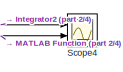
[diagram: root canvas - part 1/4, top right region]
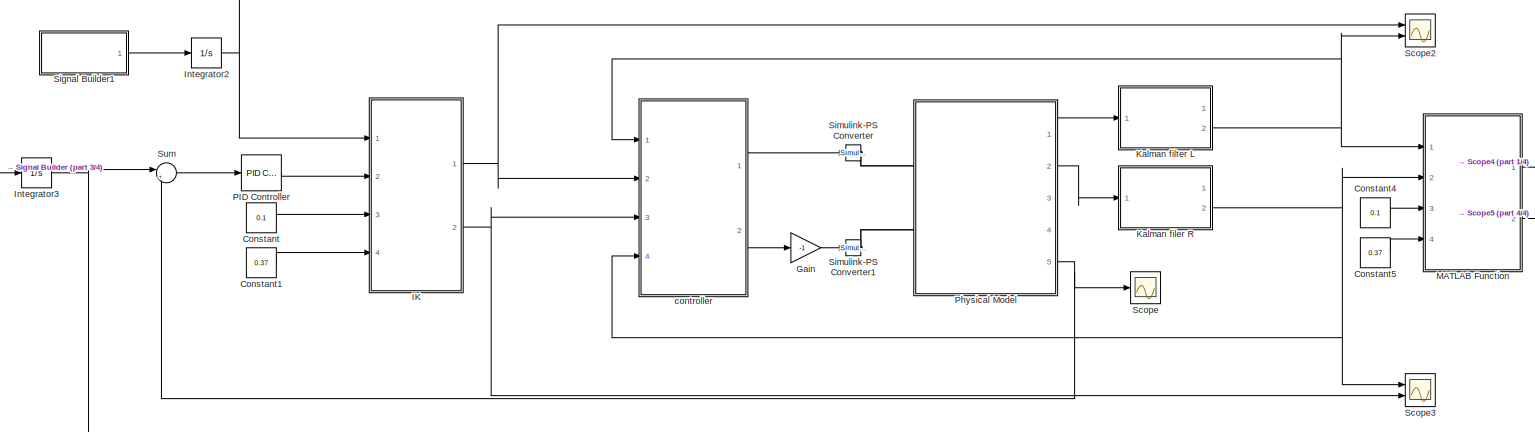
[diagram: root canvas - part 2/4, most of the canvas]
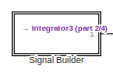
[diagram: root canvas - part 3/4, middle left region]
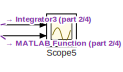
[diagram: root canvas - part 4/4, bottom right region]
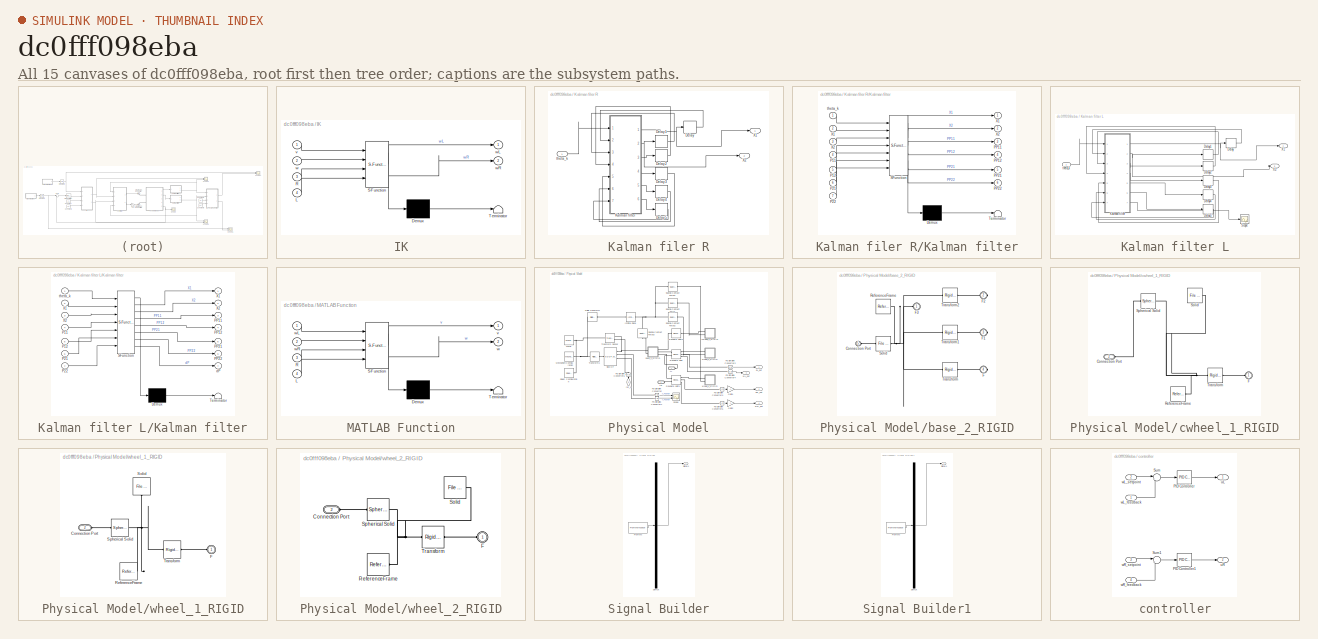
[diagram: thumbnail index - all 15 canvases of the model, root first then tree order]
MODEL slx_dc0fff098eba
KIND model
CONFIG AbsTol = auto
CONFIG EnableMultiTasking = off
CONFIG FixedStep = auto
CONFIG MaxStep = auto
CONFIG MinStep = auto
CONFIG RelTol = 1e-3
CONFIG SampleTimeConstraint = Unconstrained
CONFIG SolverName = VariableStepAuto
CONFIG StartTime = 0.0
CONFIG StopTime = 10.0
WORKSPACE source: external: MATLAB File  (data not in archive)
BLOCK [Constant] Constant
  Value = 0.1
BLOCK [Constant] Constant1
  Value = 0.37
BLOCK [Constant] Constant4
  Value = 0.1
BLOCK [Constant] Constant5
  Value = 0.37
BLOCK [Gain] Gain
  Gain = -1
BLOCK [SubSystem] IK
  ErrorFcn = Stateflow.Translate.translate
  PermitHierarchicalResolution = ExplicitOnly
  Ports = [4, 2]
  RequestExecContextInheritance = off
  SFBlockType = MATLAB Function
  TreatAsAtomicUnit = on
BLOCK [Demux] IK/ Demux 
  Outputs = 1
  Ports = [1, 1]
BLOCK [S-Function] IK/ SFunction 
  EnableBusSupport = on
  FunctionName = sf_sfun
  PortCounts = [4 3]
  Ports = [4, 3]
  SFcnIsStateOwnerBlock = off
  SFunctionDeploymentMode = off
  Tag = Stateflow S-Function 2
BLOCK [Terminator] IK/ Terminator 
BLOCK [Inport] IK/L
  Port = 4
BLOCK [Inport] IK/R
  Port = 3
BLOCK [Inport] IK/v
BLOCK [Inport] IK/w
  Port = 2
BLOCK [Outport] IK/wL
BLOCK [Outport] IK/wR
  Port = 2
BLOCK [Integrator] Integrator2
  Ports = [1, 1]
BLOCK [Integrator] Integrator3
  Ports = [1, 1]
BLOCK [SubSystem] Kalman filer R
  Ports = [1, 2]
  RequestExecContextInheritance = off
BLOCK [Delay] Kalman filer R/Delay
  DelayLength = 1
  InputPortMap = u0
  Ports = [1, 1]
  SampleTime = 0.0001
BLOCK [Delay] Kalman filer R/Delay1
  DelayLength = 1
  InputPortMap = u0
  Ports = [1, 1]
  SampleTime = 0.0001
BLOCK [Delay] Kalman filer R/Delay2
  DelayLength = 1
  InputPortMap = u0
  Ports = [1, 1]
  SampleTime = 0.0001
BLOCK [Delay] Kalman filer R/Delay3
  DelayLength = 1
  InputPortMap = u0
  Ports = [1, 1]
  SampleTime = 0.0001
BLOCK [Delay] Kalman filer R/Delay4
  DelayLength = 1
  InputPortMap = u0
  Ports = [1, 1]
  SampleTime = 0.0001
BLOCK [Delay] Kalman filer R/Delay5
  DelayLength = 1
  InputPortMap = u0
  Ports = [1, 1]
  SampleTime = 0.0001
BLOCK [SubSystem] Kalman filer R/Kalman filter
  ErrorFcn = Stateflow.Translate.translate
  PermitHierarchicalResolution = ExplicitOnly
  Ports = [7, 6]
  RequestExecContextInheritance = off
  SFBlockType = MATLAB Function
  TreatAsAtomicUnit = on
BLOCK [Demux] Kalman filer R/Kalman filter/ Demux 
  Outputs = 1
  Ports = [1, 1]
BLOCK [S-Function] Kalman filer R/Kalman filter/ SFunction 
  EnableBusSupport = on
  FunctionName = sf_sfun
  PortCounts = [7 7]
  Ports = [7, 7]
  SFcnIsStateOwnerBlock = off
  SFunctionDeploymentMode = off
  Tag = Stateflow S-Function 3
BLOCK [Terminator] Kalman filer R/Kalman filter/ Terminator 
BLOCK [Inport] Kalman filer R/Kalman filter/P11
  Port = 4
BLOCK [Inport] Kalman filer R/Kalman filter/P12
  Port = 5
BLOCK [Inport] Kalman filer R/Kalman filter/P21
  Port = 6
BLOCK [Inport] Kalman filer R/Kalman filter/P22
  Port = 7
BLOCK [Outport] Kalman filer R/Kalman filter/PP11
  Port = 3
BLOCK [Outport] Kalman filer R/Kalman filter/PP12
  Port = 4
BLOCK [Outport] Kalman filer R/Kalman filter/PP21
  Port = 5
BLOCK [Outport] Kalman filer R/Kalman filter/PP22
  Port = 6
BLOCK [Outport] Kalman filer R/Kalman filter/X1
BLOCK [Inport] Kalman filer R/Kalman filter/X1 
  Port = 2
BLOCK [Outport] Kalman filer R/Kalman filter/X2
  Port = 2
BLOCK [Inport] Kalman filer R/Kalman filter/X2 
  Port = 3
BLOCK [Inport] Kalman filer R/Kalman filter/theta_k
BLOCK [Outport] Kalman filer R/X1
BLOCK [Outport] Kalman filer R/X2
  Port = 2
BLOCK [Inport] Kalman filer R/theta_k
BLOCK [SubSystem] Kalman filter L
  Ports = [1, 2]
  RequestExecContextInheritance = off
BLOCK [Delay] Kalman filter L/Delay
  DelayLength = 1
  InputPortMap = u0
  Ports = [1, 1]
  SampleTime = 0.0001
BLOCK [Delay] Kalman filter L/Delay1
  DelayLength = 1
  InputPortMap = u0
  Ports = [1, 1]
  SampleTime = 0.0001
BLOCK [Delay] Kalman filter L/Delay2
  DelayLength = 1
  InputPortMap = u0
  Ports = [1, 1]
  SampleTime = 0.0001
BLOCK [Delay] Kalman filter L/Delay3
  DelayLength = 1
  InputPortMap = u0
  Ports = [1, 1]
  SampleTime = 0.0001
BLOCK [Delay] Kalman filter L/Delay4
  DelayLength = 1
  InputPortMap = u0
  Ports = [1, 1]
  SampleTime = 0.0001
BLOCK [Delay] Kalman filter L/Delay5
  DelayLength = 1
  InputPortMap = u0
  Ports = [1, 1]
  SampleTime = 0.0001
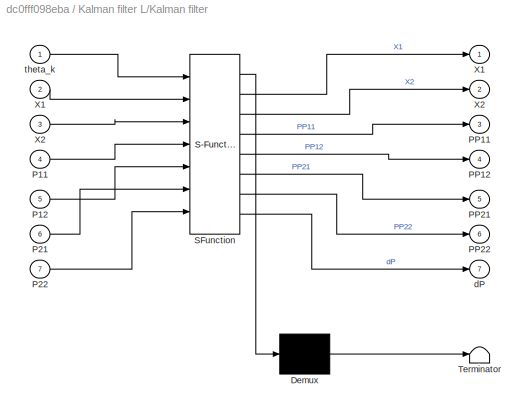
BLOCK [SubSystem] Kalman filter L/Kalman filter
  ErrorFcn = Stateflow.Translate.translate
  PermitHierarchicalResolution = ExplicitOnly
  Ports = [7, 7]
  RequestExecContextInheritance = off
  SFBlockType = MATLAB Function
  TreatAsAtomicUnit = on
BLOCK [Demux] Kalman filter L/Kalman filter/ Demux 
  Outputs = 1
  Ports = [1, 1]
BLOCK [S-Function] Kalman filter L/Kalman filter/ SFunction 
  EnableBusSupport = on
  FunctionName = sf_sfun
  PortCounts = [7 8]
  Ports = [7, 8]
  SFcnIsStateOwnerBlock = off
  SFunctionDeploymentMode = off
  Tag = Stateflow S-Function 1
BLOCK [Terminator] Kalman filter L/Kalman filter/ Terminator 
BLOCK [Inport] Kalman filter L/Kalman filter/P11
  Port = 4
BLOCK [Inport] Kalman filter L/Kalman filter/P12
  Port = 5
BLOCK [Inport] Kalman filter L/Kalman filter/P21
  Port = 6
BLOCK [Inport] Kalman filter L/Kalman filter/P22
  Port = 7
BLOCK [Outport] Kalman filter L/Kalman filter/PP11
  Port = 3
BLOCK [Outport] Kalman filter L/Kalman filter/PP12
  Port = 4
BLOCK [Outport] Kalman filter L/Kalman filter/PP21
  Port = 5
BLOCK [Outport] Kalman filter L/Kalman filter/PP22
  Port = 6
BLOCK [Outport] Kalman filter L/Kalman filter/X1
BLOCK [Inport] Kalman filter L/Kalman filter/X1 
  Port = 2
BLOCK [Outport] Kalman filter L/Kalman filter/X2
  Port = 2
BLOCK [Inport] Kalman filter L/Kalman filter/X2 
  Port = 3
BLOCK [Outport] Kalman filter L/Kalman filter/dP
  Port = 7
BLOCK [Inport] Kalman filter L/Kalman filter/theta_k
BLOCK [Scope] Kalman filter L/Scope
  Floating = off
  NumInputPorts = 1
  Ports = [1]
  ScopeSpecificationString = Simulink.scopes.TimeScopeBlockCfg('CurrentConfiguration', extmgr.ConfigurationSet(extmgr.Configuration('Core','General UI',true),extmgr.Configuration('Core','Source UI',true),extmgr.Configuration('Sources','WiredSimulink',true,'DataLoggingVariableName','ScopeData1'),extmgr.Configuration('Visuals','Time Domain',true,'SerializedDisplays',{struct('MinYLimReal','-0.00000000008','MaxYLimReal','0.000000...<+1453ch>
BLOCK [Outport] Kalman filter L/X1
BLOCK [Outport] Kalman filter L/X2
  Port = 2
BLOCK [Inport] Kalman filter L/theta_k
BLOCK [SubSystem] MATLAB Function
  ErrorFcn = Stateflow.Translate.translate
  PermitHierarchicalResolution = ExplicitOnly
  Ports = [4, 2]
  RequestExecContextInheritance = off
  SFBlockType = MATLAB Function
  TreatAsAtomicUnit = on
BLOCK [Demux] MATLAB Function/ Demux 
  Outputs = 1
  Ports = [1, 1]
BLOCK [S-Function] MATLAB Function/ SFunction 
  EnableBusSupport = on
  FunctionName = sf_sfun
  PortCounts = [4 3]
  Ports = [4, 3]
  SFcnIsStateOwnerBlock = off
  SFunctionDeploymentMode = off
  Tag = Stateflow S-Function 4
BLOCK [Terminator] MATLAB Function/ Terminator 
BLOCK [Inport] MATLAB Function/L
  Port = 4
BLOCK [Inport] MATLAB Function/R
  Port = 3
BLOCK [Outport] MATLAB Function/v
BLOCK [Outport] MATLAB Function/w
  Port = 2
BLOCK [Inport] MATLAB Function/wL
BLOCK [Inport] MATLAB Function/wR
  Port = 2
BLOCK [Reference] PID Controller  REF=slpidlib/PID Controller
  Ports = [1, 1]
  SourceBlock = slpidlib/PID Controller
  SourceProductBaseCode = SL
  SourceType = PID 1dof
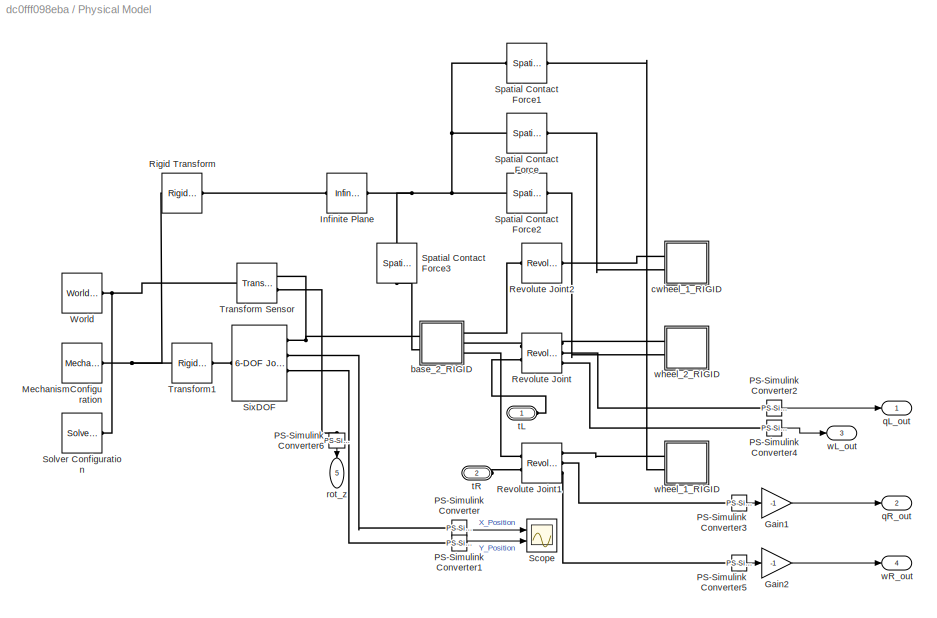
BLOCK [SubSystem] Physical Model
  Ports = [0, 5, 0, 0, 0, 2]
  RequestExecContextInheritance = off
BLOCK [Gain] Physical Model/Gain1
  Gain = -1
BLOCK [Gain] Physical Model/Gain2
  Gain = -1
BLOCK [Reference] Physical Model/Infinite Plane  REF=sm_lib/Curves and Surfaces/Infinite Plane
  Ports = [0, 0, 0, 0, 0, 1, 1]
  SourceBlock = sm_lib/Curves and Surfaces/Infinite Plane
  SourceProductBaseCode = MS
  SourceType = Infinite Plane
BLOCK [Reference] Physical Model/MechanismConfiguration  REF=sm_lib/Utilities/Mechanism
Configuration
  Ports = [0, 0, 0, 0, 0, 0, 1]
  SourceBlock = sm_lib/Utilities/Mechanism\nConfiguration
  SourceProductBaseCode = MS
  SourceType = Mechanism\nConfiguration
BLOCK [Reference] Physical Model/PS-Simulink Converter  REF=nesl_utility/PS-Simulink
Converter
  Ports = [0, 1, 0, 0, 0, 1]
  SourceBlock = nesl_utility/PS-Simulink\nConverter
  SourceProductBaseCode = PW,SS
  SourceType = PS-Simulink\nConverter
BLOCK [Reference] Physical Model/PS-Simulink Converter1  REF=nesl_utility/PS-Simulink
Converter
  Ports = [0, 1, 0, 0, 0, 1]
  SourceBlock = nesl_utility/PS-Simulink\nConverter
  SourceProductBaseCode = PW,SS
  SourceType = PS-Simulink\nConverter
BLOCK [Reference] Physical Model/PS-Simulink Converter2  REF=nesl_utility/PS-Simulink
Converter
  Ports = [0, 1, 0, 0, 0, 1]
  SourceBlock = nesl_utility/PS-Simulink\nConverter
  SourceProductBaseCode = PW,SS
  SourceType = PS-Simulink\nConverter
BLOCK [Reference] Physical Model/PS-Simulink Converter3  REF=nesl_utility/PS-Simulink
Converter
  Ports = [0, 1, 0, 0, 0, 1]
  SourceBlock = nesl_utility/PS-Simulink\nConverter
  SourceProductBaseCode = PW,SS
  SourceType = PS-Simulink\nConverter
BLOCK [Reference] Physical Model/PS-Simulink Converter4  REF=nesl_utility/PS-Simulink
Converter
  Ports = [0, 1, 0, 0, 0, 1]
  SourceBlock = nesl_utility/PS-Simulink\nConverter
  SourceProductBaseCode = PW,SS
  SourceType = PS-Simulink\nConverter
BLOCK [Reference] Physical Model/PS-Simulink Converter5  REF=nesl_utility/PS-Simulink
Converter
  Ports = [0, 1, 0, 0, 0, 1]
  SourceBlock = nesl_utility/PS-Simulink\nConverter
  SourceProductBaseCode = PW,SS
  SourceType = PS-Simulink\nConverter
BLOCK [Reference] Physical Model/PS-Simulink Converter6  REF=nesl_utility/PS-Simulink
Converter
  NameLocation = left
  Ports = [0, 1, 0, 0, 0, 1]
  SourceBlock = nesl_utility/PS-Simulink\nConverter
  SourceProductBaseCode = PW,SS
  SourceType = PS-Simulink\nConverter
BLOCK [Reference] Physical Model/Revolute Joint  REF=sm_lib/Joints/Revolute Joint
  Ports = [0, 0, 0, 0, 0, 2, 3]
  SourceBlock = sm_lib/Joints/Revolute Joint
  SourceProductBaseCode = MS
  SourceType = Revolute Joint
BLOCK [Reference] Physical Model/Revolute Joint1  REF=sm_lib/Joints/Revolute Joint
  Ports = [0, 0, 0, 0, 0, 2, 3]
  SourceBlock = sm_lib/Joints/Revolute Joint
  SourceProductBaseCode = MS
  SourceType = Revolute Joint
BLOCK [Reference] Physical Model/Revolute Joint2  REF=sm_lib/Joints/Revolute Joint
  Ports = [0, 0, 0, 0, 0, 1, 1]
  SourceBlock = sm_lib/Joints/Revolute Joint
  SourceProductBaseCode = MS
  SourceType = Revolute Joint
BLOCK [Reference] Physical Model/Rigid Transform  REF=sm_lib/Frames and
Transforms/Rigid
Transform
  Ports = [0, 0, 0, 0, 0, 1, 1]
  SourceBlock = sm_lib/Frames and\nTransforms/Rigid\nTransform
  SourceProductBaseCode = MS
  SourceType = Rigid\nTransform
BLOCK [Scope] Physical Model/Scope
  Floating = off
  NumInputPorts = 2
  Ports = [2]
  ScopeSpecificationString = Simulink.scopes.TimeScopeBlockCfg('CurrentConfiguration', extmgr.ConfigurationSet(extmgr.Configuration('Core','General UI',true),extmgr.Configuration('Core','Source UI',true),extmgr.Configuration('Sources','WiredSimulink',true),extmgr.Configuration('Visuals','Time Domain',true,'SerializedDisplays',{struct('MinYLimReal','-0.06709','MaxYLimReal','0.46204','YLabelReal','','MinYLimMag','0.00000','MaxY...<+1389ch>
BLOCK [Reference] Physical Model/SixDOF  REF=sm_lib/Joints/6-DOF Joint
  Ports = [0, 0, 0, 0, 0, 1, 4]
  SourceBlock = sm_lib/Joints/6-DOF Joint
  SourceProductBaseCode = MS
  SourceType = 6-DOF Joint
BLOCK [Reference] Physical Model/Solver Configuration  REF=nesl_utility/Solver
Configuration
  Ports = [0, 0, 0, 0, 0, 0, 1]
  SourceBlock = nesl_utility/Solver\nConfiguration
  SourceProductBaseCode = PW,SS
  SourceType = Solver\nConfiguration
BLOCK [Reference] Physical Model/Spatial Contact Force  REF=sm_lib/Forces and
Torques/Spatial
Contact Force
  Ports = [0, 0, 0, 0, 0, 1, 1]
  SourceBlock = sm_lib/Forces and\nTorques/Spatial\nContact Force
  SourceProductBaseCode = MS
  SourceType = Spatial\nContact Force
BLOCK [Reference] Physical Model/Spatial Contact Force1  REF=sm_lib/Forces and
Torques/Spatial
Contact Force
  Ports = [0, 0, 0, 0, 0, 1, 1]
  SourceBlock = sm_lib/Forces and\nTorques/Spatial\nContact Force
  SourceProductBaseCode = MS
  SourceType = Spatial\nContact Force
BLOCK [Reference] Physical Model/Spatial Contact Force2  REF=sm_lib/Forces and
Torques/Spatial
Contact Force
  Ports = [0, 0, 0, 0, 0, 1, 1]
  SourceBlock = sm_lib/Forces and\nTorques/Spatial\nContact Force
  SourceProductBaseCode = MS
  SourceType = Spatial\nContact Force
BLOCK [Reference] Physical Model/Spatial Contact Force3  REF=sm_lib/Forces and
Torques/Spatial
Contact Force
  NameLocation = left
  Ports = [0, 0, 0, 0, 0, 1, 1]
  SourceBlock = sm_lib/Forces and\nTorques/Spatial\nContact Force
  SourceProductBaseCode = MS
  SourceType = Spatial\nContact Force
BLOCK [Reference] Physical Model/Transform Sensor  REF=sm_lib/Frames and
Transforms/Transform
Sensor
  Ports = [0, 0, 0, 0, 0, 1, 2]
  SourceBlock = sm_lib/Frames and\nTransforms/Transform\nSensor
  SourceProductBaseCode = MS
  SourceType = Transform\nSensor
BLOCK [Reference] Physical Model/Transform1  REF=sm_lib/Frames and
Transforms/Rigid
Transform
  Ports = [0, 0, 0, 0, 0, 1, 1]
  SourceBlock = sm_lib/Frames and\nTransforms/Rigid\nTransform
  SourceProductBaseCode = MS
  SourceType = Rigid\nTransform
BLOCK [Reference] Physical Model/World  REF=sm_lib/Frames and
Transforms/World Frame
  Ports = [0, 0, 0, 0, 0, 0, 1]
  SourceBlock = sm_lib/Frames and\nTransforms/World Frame
  SourceProductBaseCode = MS
  SourceType = World Frame
BLOCK [SubSystem] Physical Model/base_2_RIGID
  Ports = [0, 0, 0, 0, 0, 2, 3]
  RequestExecContextInheritance = off
BLOCK [PMIOPort] Physical Model/base_2_RIGID/Connection Port
  Port = 5
  Side = Left
BLOCK [PMIOPort] Physical Model/base_2_RIGID/F
  Port = 4
  Side = Right
BLOCK [PMIOPort] Physical Model/base_2_RIGID/F1
  Port = 3
  Side = Right
BLOCK [PMIOPort] Physical Model/base_2_RIGID/F2
  Port = 2
  Side = Right
BLOCK [PMIOPort] Physical Model/base_2_RIGID/F3
  Side = Left
BLOCK [Reference] Physical Model/base_2_RIGID/ReferenceFrame  REF=sm_lib/Frames and
Transforms/Reference
Frame
  Ports = [0, 0, 0, 0, 0, 0, 1]
  SourceBlock = sm_lib/Frames and\nTransforms/Reference\nFrame
  SourceProductBaseCode = MS
  SourceType = Reference\nFrame
BLOCK [Reference] Physical Model/base_2_RIGID/Solid  REF=sm_lib/Body Elements/File Solid
  Ports = [0, 0, 0, 0, 0, 1, 1]
  SourceBlock = sm_lib/Body Elements/File Solid
  SourceProductBaseCode = MS
  SourceType = File Solid
BLOCK [Reference] Physical Model/base_2_RIGID/Transform  REF=sm_lib/Frames and
Transforms/Rigid
Transform
  Ports = [0, 0, 0, 0, 0, 1, 1]
  SourceBlock = sm_lib/Frames and\nTransforms/Rigid\nTransform
  SourceProductBaseCode = MS
  SourceType = Rigid\nTransform
BLOCK [Reference] Physical Model/base_2_RIGID/Transform1  REF=sm_lib/Frames and
Transforms/Rigid
Transform
  Ports = [0, 0, 0, 0, 0, 1, 1]
  SourceBlock = sm_lib/Frames and\nTransforms/Rigid\nTransform
  SourceProductBaseCode = MS
  SourceType = Rigid\nTransform
BLOCK [Reference] Physical Model/base_2_RIGID/Transform2  REF=sm_lib/Frames and
Transforms/Rigid
Transform
  Ports = [0, 0, 0, 0, 0, 1, 1]
  SourceBlock = sm_lib/Frames and\nTransforms/Rigid\nTransform
  SourceProductBaseCode = MS
  SourceType = Rigid\nTransform
BLOCK [SubSystem] Physical Model/cwheel_1_RIGID
  Ports = [0, 0, 0, 0, 0, 2]
  RequestExecContextInheritance = off
BLOCK [PMIOPort] Physical Model/cwheel_1_RIGID/Connection Port
  Port = 2
  Side = Left
BLOCK [PMIOPort] Physical Model/cwheel_1_RIGID/F
  Side = Left
BLOCK [Reference] Physical Model/cwheel_1_RIGID/ReferenceFrame  REF=sm_lib/Frames and
Transforms/Reference
Frame
  Ports = [0, 0, 0, 0, 0, 0, 1]
  SourceBlock = sm_lib/Frames and\nTransforms/Reference\nFrame
  SourceProductBaseCode = MS
  SourceType = Reference\nFrame
BLOCK [Reference] Physical Model/cwheel_1_RIGID/Solid  REF=sm_lib/Body Elements/File Solid
  Ports = [0, 0, 0, 0, 0, 0, 1]
  SourceBlock = sm_lib/Body Elements/File Solid
  SourceProductBaseCode = MS
  SourceType = File Solid
BLOCK [Reference] Physical Model/cwheel_1_RIGID/Spherical Solid  REF=sm_lib/Body Elements/Spherical Solid
  Ports = [0, 0, 0, 0, 0, 1, 1]
  SourceBlock = sm_lib/Body Elements/Spherical Solid
  SourceProductBaseCode = MS
  SourceType = Spherical Solid
BLOCK [Reference] Physical Model/cwheel_1_RIGID/Transform  REF=sm_lib/Frames and
Transforms/Rigid
Transform
  Ports = [0, 0, 0, 0, 0, 1, 1]
  SourceBlock = sm_lib/Frames and\nTransforms/Rigid\nTransform
  SourceProductBaseCode = MS
  SourceType = Rigid\nTransform
BLOCK [Outport] Physical Model/qL_out
BLOCK [Outport] Physical Model/qR_out
  Port = 2
BLOCK [Outport] Physical Model/rot_z
  NameLocation = left
  Port = 5
BLOCK [PMIOPort] Physical Model/tL
  Side = Left
BLOCK [PMIOPort] Physical Model/tR
  Port = 2
  Side = Left
BLOCK [Outport] Physical Model/wL_out
  Port = 3
BLOCK [Outport] Physical Model/wR_out
  Port = 4
BLOCK [SubSystem] Physical Model/wheel_1_RIGID
  Ports = [0, 0, 0, 0, 0, 2]
  RequestExecContextInheritance = off
BLOCK [PMIOPort] Physical Model/wheel_1_RIGID/Connection Port
  Port = 2
  Side = Left
BLOCK [PMIOPort] Physical Model/wheel_1_RIGID/F
  Side = Left
BLOCK [Reference] Physical Model/wheel_1_RIGID/ReferenceFrame  REF=sm_lib/Frames and
Transforms/Reference
Frame
  Ports = [0, 0, 0, 0, 0, 0, 1]
  SourceBlock = sm_lib/Frames and\nTransforms/Reference\nFrame
  SourceProductBaseCode = MS
  SourceType = Reference\nFrame
BLOCK [Reference] Physical Model/wheel_1_RIGID/Solid  REF=sm_lib/Body Elements/File Solid
  NameLocation = left
  Ports = [0, 0, 0, 0, 0, 0, 1]
  SourceBlock = sm_lib/Body Elements/File Solid
  SourceProductBaseCode = MS
  SourceType = File Solid
BLOCK [Reference] Physical Model/wheel_1_RIGID/Spherical Solid  REF=sm_lib/Body Elements/Spherical Solid
  Ports = [0, 0, 0, 0, 0, 1, 1]
  SourceBlock = sm_lib/Body Elements/Spherical Solid
  SourceProductBaseCode = MS
  SourceType = Spherical Solid
BLOCK [Reference] Physical Model/wheel_1_RIGID/Transform  REF=sm_lib/Frames and
Transforms/Rigid
Transform
  Ports = [0, 0, 0, 0, 0, 1, 1]
  SourceBlock = sm_lib/Frames and\nTransforms/Rigid\nTransform
  SourceProductBaseCode = MS
  SourceType = Rigid\nTransform
BLOCK [SubSystem] Physical Model/wheel_2_RIGID
  Ports = [0, 0, 0, 0, 0, 2]
  RequestExecContextInheritance = off
BLOCK [PMIOPort] Physical Model/wheel_2_RIGID/Connection Port
  Port = 2
  Side = Left
BLOCK [PMIOPort] Physical Model/wheel_2_RIGID/F
  Side = Left
BLOCK [Reference] Physical Model/wheel_2_RIGID/ReferenceFrame  REF=sm_lib/Frames and
Transforms/Reference
Frame
  Ports = [0, 0, 0, 0, 0, 0, 1]
  SourceBlock = sm_lib/Frames and\nTransforms/Reference\nFrame
  SourceProductBaseCode = MS
  SourceType = Reference\nFrame
BLOCK [Reference] Physical Model/wheel_2_RIGID/Solid  REF=sm_lib/Body Elements/File Solid
  Ports = [0, 0, 0, 0, 0, 0, 1]
  SourceBlock = sm_lib/Body Elements/File Solid
  SourceProductBaseCode = MS
  SourceType = File Solid
BLOCK [Reference] Physical Model/wheel_2_RIGID/Spherical Solid  REF=sm_lib/Body Elements/Spherical Solid
  Ports = [0, 0, 0, 0, 0, 1, 1]
  SourceBlock = sm_lib/Body Elements/Spherical Solid
  SourceProductBaseCode = MS
  SourceType = Spherical Solid
BLOCK [Reference] Physical Model/wheel_2_RIGID/Transform  REF=sm_lib/Frames and
Transforms/Rigid
Transform
  Ports = [0, 0, 0, 0, 0, 1, 1]
  SourceBlock = sm_lib/Frames and\nTransforms/Rigid\nTransform
  SourceProductBaseCode = MS
  SourceType = Rigid\nTransform
BLOCK [Scope] Scope
  Floating = off
  NumInputPorts = 1
  Ports = [1]
  ScopeSpecificationString = Simulink.scopes.TimeScopeBlockCfg('CurrentConfiguration', extmgr.ConfigurationSet(extmgr.Configuration('Core','General UI',true),extmgr.Configuration('Core','Source UI',true),extmgr.Configuration('Sources','WiredSimulink',true,'DataLoggingVariableName','ScopeData1'),extmgr.Configuration('Visuals','Time Domain',true,'SerializedDisplays',{struct('MinYLimReal','-0.30598','MaxYLimReal','0.20739','YLab...<+1375ch>
BLOCK [Scope] Scope2
  Floating = off
  NumInputPorts = 2
  Ports = [2]
  ScopeSpecificationString = Simulink.scopes.TimeScopeBlockCfg('CurrentConfiguration', extmgr.ConfigurationSet(extmgr.Configuration('Core','General UI',true),extmgr.Configuration('Core','Source UI',true),extmgr.Configuration('Sources','WiredSimulink',true,'DataLoggingVariableName','ScopeData1'),extmgr.Configuration('Visuals','Time Domain',true,'SerializedDisplays',{struct('MinYLimReal','-1.17145','MaxYLimReal','10.54309','YLa...<+1419ch>
BLOCK [Scope] Scope3
  Floating = off
  NumInputPorts = 2
  Ports = [2]
  ScopeSpecificationString = Simulink.scopes.TimeScopeBlockCfg('CurrentConfiguration', extmgr.ConfigurationSet(extmgr.Configuration('Core','General UI',true),extmgr.Configuration('Core','Source UI',true),extmgr.Configuration('Sources','WiredSimulink',true,'DataLoggingVariableName','ScopeData2'),extmgr.Configuration('Visuals','Time Domain',true,'SerializedDisplays',{struct('MinYLimReal','-1.2495','MaxYLimReal','11.24548','YLab...<+1416ch>
BLOCK [Scope] Scope4
  Floating = off
  NumInputPorts = 2
  Ports = [2]
  ScopeSpecificationString = Simulink.scopes.TimeScopeBlockCfg('CurrentConfiguration', extmgr.ConfigurationSet(extmgr.Configuration('Core','General UI',true),extmgr.Configuration('Core','Source UI',true),extmgr.Configuration('Sources','WiredSimulink',true,'DataLoggingVariableName','ScopeData1'),extmgr.Configuration('Visuals','Time Domain',true,'SerializedDisplays',{struct('MinYLimReal','-0.13535','MaxYLimReal','1.21814','YLab...<+1420ch>
BLOCK [Scope] Scope5
  Floating = off
  NumInputPorts = 2
  Ports = [2]
  ScopeSpecificationString = Simulink.scopes.TimeScopeBlockCfg('CurrentConfiguration', extmgr.ConfigurationSet(extmgr.Configuration('Core','General UI',true),extmgr.Configuration('Core','Source UI',true),extmgr.Configuration('Sources','WiredSimulink',true,'DataLoggingVariableName','ScopeData2'),extmgr.Configuration('Visuals','Time Domain',true,'SerializedDisplays',{struct('MinYLimReal','-0.08186','MaxYLimReal','0.63276','YLab...<+1419ch>
BLOCK [SubSystem] Signal Builder
  ClipboardFcn = sigbuilder_block('clipboard');
  CloseFcn = sigbuilder_block('close');
  ContinueFcn = sigbuilder_block('continue');
  CopyFcn = sigbuilder_block('copy');
  DeleteFcn = sigbuilder_block('delete');
  LoadFcn = sigbuilder_block('load');
  MaskHideContents = on
  ModelCloseFcn = sigbuilder_block('modelClose');
  NameChangeFcn = sigbuilder_block('namechange');
  OpenFcn = sigbuilder_block('open',[543 204.75 550.5 399.75 ]);
  PauseFcn = sigbuilder_block('pause');
  Ports = [0, 1]
  PreSaveFcn = sigbuilder_block('preSave');
  RequestExecContextInheritance = off
  StartFcn = sigbuilder_block('start');
  StopFcn = sigbuilder_block('stop');
  Tag = STV Subsys
BLOCK [Demux] Signal Builder/Demux
  DisplayOption = none
  Outputs = 1
  Ports = [1, 1]
  Tag = STV Demux
BLOCK [FromWorkspace] Signal Builder/FromWs
  Tag = STV FromWs
  VariableName = tuvar
BLOCK [Outport] Signal Builder/Signal 1
  Tag = STV Outport
BLOCK [SubSystem] Signal Builder1
  ClipboardFcn = sigbuilder_block('clipboard');
  CloseFcn = sigbuilder_block('close');
  ContinueFcn = sigbuilder_block('continue');
  CopyFcn = sigbuilder_block('copy');
  DeleteFcn = sigbuilder_block('delete');
  LoadFcn = sigbuilder_block('load');
  MaskHideContents = on
  ModelCloseFcn = sigbuilder_block('modelClose');
  NameChangeFcn = sigbuilder_block('namechange');
  OpenFcn = sigbuilder_block('open',[543 204.75 550.5 399.75 ]);
  PauseFcn = sigbuilder_block('pause');
  Ports = [0, 1]
  PreSaveFcn = sigbuilder_block('preSave');
  RequestExecContextInheritance = off
  StartFcn = sigbuilder_block('start');
  StopFcn = sigbuilder_block('stop');
  Tag = STV Subsys
BLOCK [Demux] Signal Builder1/Demux
  DisplayOption = none
  Outputs = 1
  Ports = [1, 1]
  Tag = STV Demux
BLOCK [FromWorkspace] Signal Builder1/FromWs
  Tag = STV FromWs
  VariableName = tuvar
BLOCK [Outport] Signal Builder1/Signal 1
  Tag = STV Outport
BLOCK [Reference] Simulink-PS Converter  REF=nesl_utility/Simulink-PS
Converter
  Ports = [1, 0, 0, 0, 0, 0, 1]
  SourceBlock = nesl_utility/Simulink-PS\nConverter
  SourceProductBaseCode = PW,SS
  SourceType = Simulink-PS\nConverter
BLOCK [Reference] Simulink-PS Converter1  REF=nesl_utility/Simulink-PS
Converter
  Ports = [1, 0, 0, 0, 0, 0, 1]
  SourceBlock = nesl_utility/Simulink-PS\nConverter
  SourceProductBaseCode = PW,SS
  SourceType = Simulink-PS\nConverter
BLOCK [Sum] Sum
  Inputs = |+-
  Ports = [2, 1]
BLOCK [SubSystem] controller
  Ports = [4, 2]
  RequestExecContextInheritance = off
BLOCK [Reference] controller/PID Controller  REF=slpidlib/PID Controller
  Ports = [1, 1]
  SourceBlock = slpidlib/PID Controller
  SourceProductBaseCode = SL
  SourceType = PID 1dof
BLOCK [Reference] controller/PID Controller1  REF=slpidlib/PID Controller
  Ports = [1, 1]
  SourceBlock = slpidlib/PID Controller
  SourceProductBaseCode = SL
  SourceType = PID 1dof
BLOCK [Sum] controller/Sum
  Inputs = |+-
  Ports = [2, 1]
BLOCK [Sum] controller/Sum1
  Inputs = |+-
  Ports = [2, 1]
BLOCK [Outport] controller/uL
BLOCK [Outport] controller/uR
  Port = 2
BLOCK [Inport] controller/wL_feedback
BLOCK [Inport] controller/wL_setpoint
  Port = 2
BLOCK [Inport] controller/wR_feedback
  Port = 4
BLOCK [Inport] controller/wR_setpoint
  Port = 3
LINE Constant1:1 -> IK:4
LINE Constant4:1 -> MATLAB Function:3
LINE Constant5:1 -> MATLAB Function:4
LINE Constant:1 -> IK:3
LINE Gain:1 -> Simulink-PS Converter1:1
NET IK:1 -> Scope2:1, controller:2
NET IK:2 -> Scope3:2, controller:3
NET Integrator2:1 -> IK:1, Scope4:1
NET Integrator3:1 -> Scope5:1, Sum:1
LINE Kalman filer R/Delay1:1 -> Kalman filer R/Kalman filter:3
LINE Kalman filer R/Delay2:1 -> Kalman filer R/Kalman filter:4
LINE Kalman filer R/Delay3:1 -> Kalman filer R/Kalman filter:5
LINE Kalman filer R/Delay4:1 -> Kalman filer R/Kalman filter:6
LINE Kalman filer R/Delay5:1 -> Kalman filer R/Kalman filter:7
LINE Kalman filer R/Delay:1 -> Kalman filer R/Kalman filter:2
NET Kalman filer R/Kalman filter:1 -> Kalman filer R/Delay:1, Kalman filer R/X1:1
NET Kalman filer R/Kalman filter:2 -> Kalman filer R/Delay1:1, Kalman filer R/X2:1
LINE Kalman filer R/Kalman filter:3 -> Kalman filer R/Delay2:1
LINE Kalman filer R/Kalman filter:4 -> Kalman filer R/Delay3:1
LINE Kalman filer R/Kalman filter:5 -> Kalman filer R/Delay4:1
LINE Kalman filer R/Kalman filter:6 -> Kalman filer R/Delay5:1
LINE Kalman filer R/theta_k:1 -> Kalman filer R/Kalman filter:1
NET Kalman filer R:2 -> MATLAB Function:2, Scope3:1, controller:4
LINE Kalman filter L/Delay1:1 -> Kalman filter L/Kalman filter:3
LINE Kalman filter L/Delay2:1 -> Kalman filter L/Kalman filter:4
LINE Kalman filter L/Delay3:1 -> Kalman filter L/Kalman filter:5
LINE Kalman filter L/Delay4:1 -> Kalman filter L/Kalman filter:6
LINE Kalman filter L/Delay5:1 -> Kalman filter L/Kalman filter:7
LINE Kalman filter L/Delay:1 -> Kalman filter L/Kalman filter:2
NET Kalman filter L/Kalman filter:1 -> Kalman filter L/Delay:1, Kalman filter L/X1:1
NET Kalman filter L/Kalman filter:2 -> Kalman filter L/Delay1:1, Kalman filter L/X2:1
LINE Kalman filter L/Kalman filter:3 -> Kalman filter L/Delay2:1
LINE Kalman filter L/Kalman filter:4 -> Kalman filter L/Delay3:1
LINE Kalman filter L/Kalman filter:5 -> Kalman filter L/Delay4:1
LINE Kalman filter L/Kalman filter:6 -> Kalman filter L/Delay5:1
LINE Kalman filter L/Kalman filter:7 -> Kalman filter L/Scope:1
LINE Kalman filter L/theta_k:1 -> Kalman filter L/Kalman filter:1
NET Kalman filter L:2 -> MATLAB Function:1, Scope2:2, controller:1
LINE MATLAB Function:1 -> Scope4:2
LINE MATLAB Function:2 -> Scope5:2
LINE PID Controller:1 -> IK:2
LINE Physical Model/Gain1:1 -> Physical Model/qR_out:1
LINE Physical Model/Gain2:1 -> Physical Model/wR_out:1
LINE Physical Model/PS-Simulink Converter1:1 -> Physical Model/Scope:2
LINE Physical Model/PS-Simulink Converter2:1 -> Physical Model/qL_out:1
LINE Physical Model/PS-Simulink Converter3:1 -> Physical Model/Gain1:1
LINE Physical Model/PS-Simulink Converter4:1 -> Physical Model/wL_out:1
LINE Physical Model/PS-Simulink Converter5:1 -> Physical Model/Gain2:1
LINE Physical Model/PS-Simulink Converter6:1 -> Physical Model/rot_z:1
LINE Physical Model/PS-Simulink Converter:1 -> Physical Model/Scope:1
LINE Physical Model:1 -> Kalman filter L:1
LINE Physical Model:2 -> Kalman filer R:1
NET Physical Model:5 -> Scope:1, Sum:2
LINE Signal Builder1:1 -> Integrator2:1
LINE Signal Builder:1 -> Integrator3:1
LINE Sum:1 -> PID Controller:1
LINE controller/PID Controller1:1 -> controller/uR:1
LINE controller/PID Controller:1 -> controller/uL:1
LINE controller/Sum1:1 -> controller/PID Controller1:1
LINE controller/Sum:1 -> controller/PID Controller:1
LINE controller/wL_feedback:1 -> controller/Sum:2
LINE controller/wL_setpoint:1 -> controller/Sum:1
LINE controller/wR_feedback:1 -> controller/Sum1:2
LINE controller/wR_setpoint:1 -> controller/Sum1:1
LINE controller:1 -> Simulink-PS Converter:1
LINE controller:2 -> Gain:1
PLINE Physical Model/Infinite Plane:LConn1 -- Physical Model/Rigid Transform:RConn1
PNET net1: Physical Model/Infinite Plane:RConn1 -- Physical Model/Spatial Contact Force1:LConn1 -- Physical Model/Spatial Contact Force2:LConn1 -- Physical Model/Spatial Contact Force3:LConn1 -- Physical Model/Spatial Contact Force:LConn1
PNET net2: Physical Model/MechanismConfiguration:RConn1 -- Physical Model/Rigid Transform:LConn1 -- Physical Model/Solver Configuration:RConn1 -- Physical Model/Transform Sensor:LConn1 -- Physical Model/Transform1:LConn1 -- Physical Model/World:RConn1
PLINE Physical Model/PS-Simulink Converter1:LConn1 -- Physical Model/SixDOF:RConn3
PLINE Physical Model/PS-Simulink Converter2:LConn1 -- Physical Model/Revolute Joint:RConn2
PLINE Physical Model/PS-Simulink Converter3:LConn1 -- Physical Model/Revolute Joint1:RConn2
PLINE Physical Model/PS-Simulink Converter4:LConn1 -- Physical Model/Revolute Joint:RConn3
PLINE Physical Model/PS-Simulink Converter5:LConn1 -- Physical Model/Revolute Joint1:RConn3
PLINE Physical Model/PS-Simulink Converter6:LConn1 -- Physical Model/Transform Sensor:RConn2
PLINE Physical Model/PS-Simulink Converter:LConn1 -- Physical Model/SixDOF:RConn2
PLINE Physical Model/Revolute Joint1:LConn1 -- Physical Model/base_2_RIGID:RConn3
PLINE Physical Model/Revolute Joint1:LConn2 -- Physical Model/tR:RConn1
PLINE Physical Model/Revolute Joint1:RConn1 -- Physical Model/wheel_1_RIGID:LConn1
PLINE Physical Model/Revolute Joint2:LConn1 -- Physical Model/base_2_RIGID:RConn1
PLINE Physical Model/Revolute Joint2:RConn1 -- Physical Model/cwheel_1_RIGID:LConn1
PLINE Physical Model/Revolute Joint:LConn1 -- Physical Model/base_2_RIGID:RConn2
PLINE Physical Model/Revolute Joint:LConn2 -- Physical Model/tL:RConn1
PLINE Physical Model/Revolute Joint:RConn1 -- Physical Model/wheel_2_RIGID:LConn1
PLINE Physical Model/SixDOF:LConn1 -- Physical Model/Transform1:RConn1
PNET net3: Physical Model/SixDOF:RConn1 -- Physical Model/Transform Sensor:RConn1 -- Physical Model/base_2_RIGID:LConn1
PLINE Physical Model/Spatial Contact Force1:RConn1 -- Physical Model/wheel_1_RIGID:LConn2
PLINE Physical Model/Spatial Contact Force2:RConn1 -- Physical Model/wheel_2_RIGID:LConn2
PLINE Physical Model/Spatial Contact Force3:RConn1 -- Physical Model/base_2_RIGID:LConn2
PLINE Physical Model/Spatial Contact Force:RConn1 -- Physical Model/cwheel_1_RIGID:LConn2
PLINE Physical Model/base_2_RIGID/Connection Port:RConn1 -- Physical Model/base_2_RIGID/Solid:LConn1
PLINE Physical Model/base_2_RIGID/F1:RConn1 -- Physical Model/base_2_RIGID/Transform1:RConn1
PLINE Physical Model/base_2_RIGID/F2:RConn1 -- Physical Model/base_2_RIGID/Transform2:RConn1
PNET net4: Physical Model/base_2_RIGID/F3:RConn1 -- Physical Model/base_2_RIGID/ReferenceFrame:RConn1 -- Physical Model/base_2_RIGID/Solid:RConn1 -- Physical Model/base_2_RIGID/Transform1:LConn1 -- Physical Model/base_2_RIGID/Transform2:LConn1 -- Physical Model/base_2_RIGID/Transform:LConn1
PLINE Physical Model/base_2_RIGID/F:RConn1 -- Physical Model/base_2_RIGID/Transform:RConn1
PLINE Physical Model/cwheel_1_RIGID/Connection Port:RConn1 -- Physical Model/cwheel_1_RIGID/Spherical Solid:LConn1
PLINE Physical Model/cwheel_1_RIGID/F:RConn1 -- Physical Model/cwheel_1_RIGID/Transform:RConn1
PNET net5: Physical Model/cwheel_1_RIGID/ReferenceFrame:RConn1 -- Physical Model/cwheel_1_RIGID/Solid:RConn1 -- Physical Model/cwheel_1_RIGID/Spherical Solid:RConn1 -- Physical Model/cwheel_1_RIGID/Transform:LConn1
PLINE Physical Model/wheel_1_RIGID/Connection Port:RConn1 -- Physical Model/wheel_1_RIGID/Spherical Solid:LConn1
PLINE Physical Model/wheel_1_RIGID/F:RConn1 -- Physical Model/wheel_1_RIGID/Transform:RConn1
PNET net6: Physical Model/wheel_1_RIGID/ReferenceFrame:RConn1 -- Physical Model/wheel_1_RIGID/Solid:RConn1 -- Physical Model/wheel_1_RIGID/Spherical Solid:RConn1 -- Physical Model/wheel_1_RIGID/Transform:LConn1
PLINE Physical Model/wheel_2_RIGID/Connection Port:RConn1 -- Physical Model/wheel_2_RIGID/Spherical Solid:LConn1
PLINE Physical Model/wheel_2_RIGID/F:RConn1 -- Physical Model/wheel_2_RIGID/Transform:RConn1
PNET net7: Physical Model/wheel_2_RIGID/ReferenceFrame:RConn1 -- Physical Model/wheel_2_RIGID/Solid:RConn1 -- Physical Model/wheel_2_RIGID/Spherical Solid:RConn1 -- Physical Model/wheel_2_RIGID/Transform:LConn1
PLINE Physical Model:LConn1 -- Simulink-PS Converter:RConn1
PLINE Physical Model:LConn2 -- Simulink-PS Converter1:RConn1
note: NET lines group one-source signal fan-out (src -> all destinations, sorted); 1:1 wires keep LINE; PNET lines group multi-terminal physical nets as a canonical sorted terminal list (undirected conserving connections); 2-terminal nets keep the pairwise PLINE form
CHART Kalman filter L/Kalman filter states=1 transitions=1
  STATE_LABEL 'eML_blk_kernel()'
  STATE_LABEL 'SCRIPT:\nfunction [X1,X2,PP11,PP12,PP21,PP22,dP] = KalmanFilterFNC(theta_k,X1,X2,P11,P12,P21,P22)\n%syms delta_t theta_k omega_k V_k Q x_k1 xp_hat_k x_hat_k P_hat_k yp_k R x11 x21 p11 p12 p21 p22 dt\ndt = 0.0001;\nomega_k = 0;\ndelta_t = dt;\nA = [1 delta_t;0 1];\nG = [delta_t*delta_t/2;delta_t];\nC = [1 0];\nQ = 6.800;\nR = 0.01;\nx_k = [theta_k;0]\n%x_k = A*x_k1;\ny_k = C*x_k;\nx11 = X1;\nx21 = X2;\nx_hat_k = [...<+1478ch>'
CHART IK states=1 transitions=1
  STATE_LABEL 'eML_blk_kernel()'
  STATE_LABEL 'SCRIPT:\nfunction [wL,wR] = IK(v,w,R,L)\nwL = (1/R)*(v-(w*L)/2);\nwR = (1/R)*(v+(w*L)/2);\n'
CHART Kalman filer R/Kalman filter states=1 transitions=1
  STATE_LABEL 'eML_blk_kernel()'
  STATE_LABEL 'SCRIPT:\nfunction [X1,X2,PP11,PP12,PP21,PP22] = KalmanFilterFNC(theta_k,X1,X2,P11,P12,P21,P22)\n%syms delta_t theta_k omega_k V_k Q x_k1 xp_hat_k x_hat_k P_hat_k yp_k R x11 x21 p11 p12 p21 p22 dt\ndt =0.0001;\nomega_k = 0;\ndelta_t = dt;\nA = [1 delta_t;0 1];\nG = [delta_t*delta_t/2;delta_t];\nC = [1 0];\nQ = 6.800;\nR = 0.01;\nx_k = [theta_k;0]\n%x_k = A*x_k1;\ny_k = C*x_k;\nx11 = X1;\nx21 = X2;\nx_hat_k = [x11;...<+1438ch>'
CHART MATLAB Function states=1 transitions=1
  STATE_LABEL 'eML_blk_kernel()'
  STATE_LABEL 'SCRIPT:\nfunction [v,w] = FK(wL,wR,R,L)\nv = (R/2)*(wL+wR);\nw = (R/L)*(wR-wL);\n'
CHART  states=0 transitions=0
CHART  states=0 transitions=0
CHART  states=0 transitions=0
CHART  states=0 transitions=0
